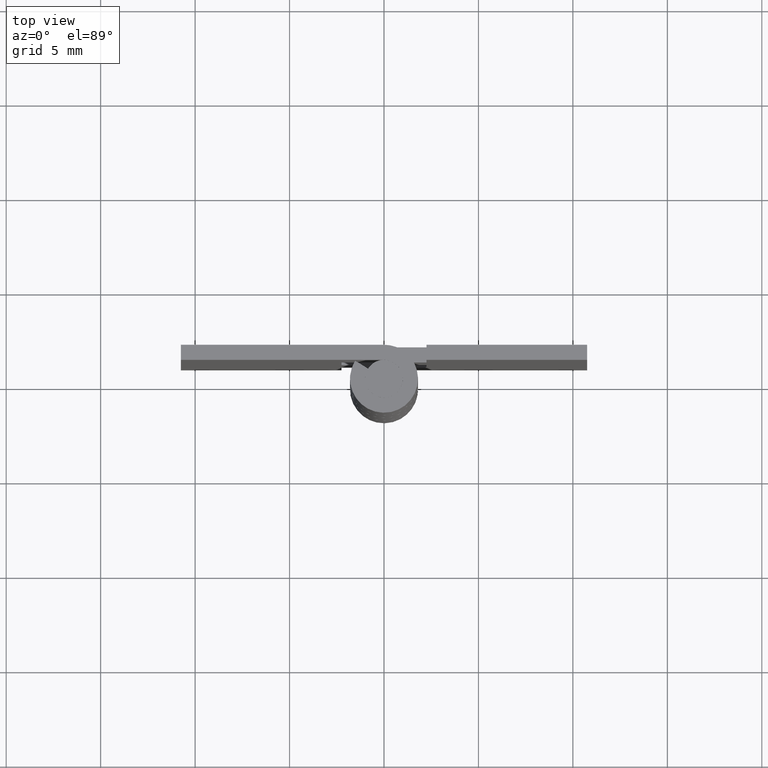
[diagram: clean part render]
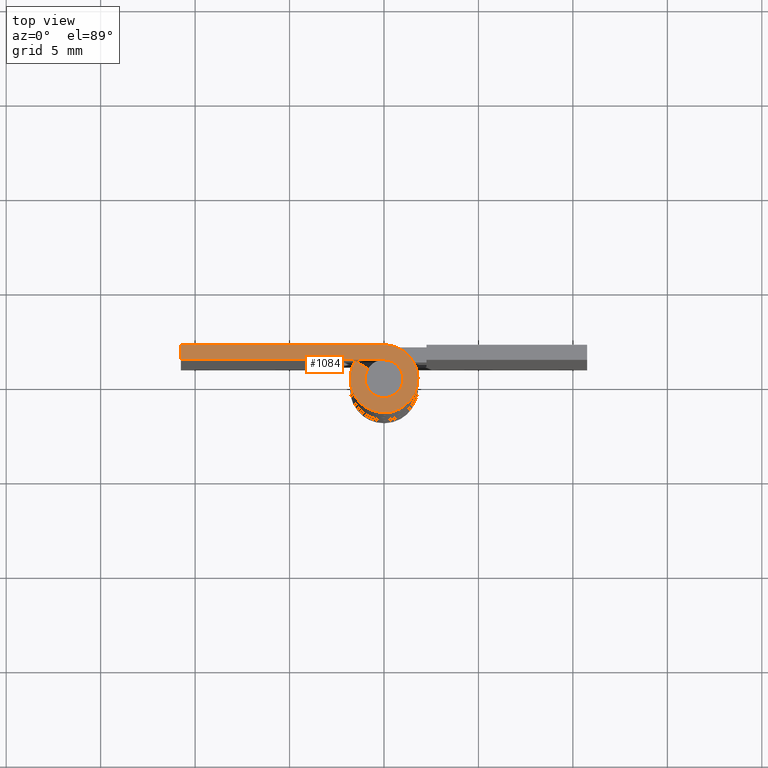
[diagram: same view with one face highlighted and labeled with its STEP entity id]
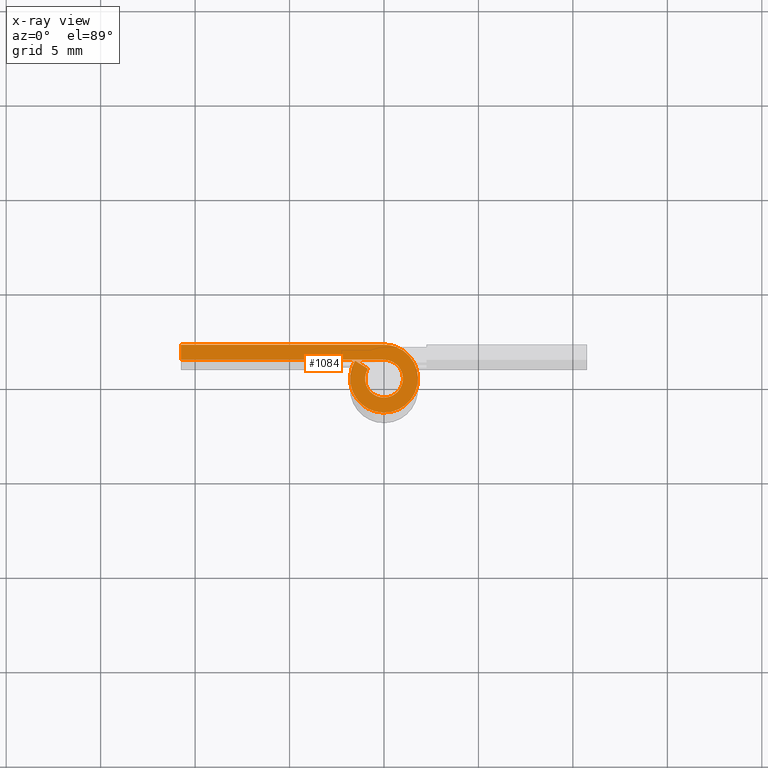
[diagram: x-ray of the same camera — body ghosted, the highlighted face saturated]
A machine part, top view. The second image highlights one B-rep face of the part: STEP entity #1084.
The next image is the same camera in x-ray: the body ghosted, the highlighted face saturated — about 0% of this face is hidden behind the body in this view.
In plain terms, the highlighted face is a freeform B-spline surface patch.
Its self-contained STEP definition (entity closure, byte-faithful):
#1007=CARTESIAN_POINT('',(-11.376868335568741,1.979806474346781,32.0));
#1008=CARTESIAN_POINT('',(2.426785787157178,1.979806474346781,32.0));
#1009=CARTESIAN_POINT('',(-11.376868335568741,-1.979468449301521,32.0));
#1010=CARTESIAN_POINT('',(2.426785787157178,-1.979468449301521,32.0));
#1011=B_SPLINE_SURFACE_WITH_KNOTS('',1,1,((#1007,#1009),(#1008,#1010)),.UNSPECIFIED.,.F.,.F.,.U.,(2,2),(2,2),(0.0,13.803654122725920),(0.0,3.959274923648302),.UNSPECIFIED.);
#1012=CARTESIAN_POINT('',(1.102148E-016,1.800003000000000,32.0));
#1013=VERTEX_POINT('',#1012);
#1014=CARTESIAN_POINT('',(-10.750000000000000,1.800003000000000,32.0));
#1015=VERTEX_POINT('',#1014);
#1016=CARTESIAN_POINT('',(1.102148E-016,1.800003000000000,32.0));
#1017=CARTESIAN_POINT('',(-10.750000000000000,1.800003000000000,32.0));
#1018=QUASI_UNIFORM_CURVE('',1,(#1016,#1017),.UNSPECIFIED.,.F.,.U.);
#1019=EDGE_CURVE('',#1013,#1015,#1018,.T.);
#1020=ORIENTED_EDGE('',*,*,#1019,.T.);
#1021=CARTESIAN_POINT('',(-10.750000000000000,1.0,32.0));
#1022=VERTEX_POINT('',#1021);
#1023=CARTESIAN_POINT('',(-10.750000000000000,1.800003000000000,32.0));
#1024=CARTESIAN_POINT('',(-10.750000000000000,1.0,32.0));
#1025=QUASI_UNIFORM_CURVE('',1,(#1023,#1024),.UNSPECIFIED.,.F.,.U.);
#1026=EDGE_CURVE('',#1015,#1022,#1025,.T.);
#1027=ORIENTED_EDGE('',*,*,#1026,.T.);
#1028=CARTESIAN_POINT('',(-1.224606E-016,1.0,32.0));
#1029=VERTEX_POINT('',#1028);
#1030=CARTESIAN_POINT('',(-10.750000000000000,1.0,32.0));
#1031=CARTESIAN_POINT('',(-1.224606E-016,1.0,32.0));
#1032=QUASI_UNIFORM_CURVE('',1,(#1030,#1031),.UNSPECIFIED.,.F.,.U.);
#1033=EDGE_CURVE('',#1022,#1029,#1032,.T.);
#1034=ORIENTED_EDGE('',*,*,#1033,.T.);
#1035=CARTESIAN_POINT('',(-0.849382491745591,0.527777777777779,32.0));
#1036=VERTEX_POINT('',#1035);
#1037=CARTESIAN_POINT('',(-0.849382491745591,0.527777777777779,32.0));
#1038=CARTESIAN_POINT('',(-1.257765516524186,-0.129456016023776,32.000000000000007));
#1039=CARTESIAN_POINT('',(-0.724070426544637,-0.689726045182772,32.0));
#1040=CARTESIAN_POINT('',(-0.190375336565088,-1.249996074341768,32.000000000000007));
#1041=CARTESIAN_POINT('',(0.485912657903774,-0.874007373475127,32.0));
#1042=CARTESIAN_POINT('',(1.162200652372636,-0.498018672608487,32.000000000000007));
#1043=CARTESIAN_POINT('',(0.967989507555513,0.250990663695756,32.0));
#1044=CARTESIAN_POINT('',(0.773778362738389,1.0,32.000000000000007));
#1045=CARTESIAN_POINT('',(0.0,1.0,32.0));
#1053=(BOUNDED_CURVE()B_SPLINE_CURVE(2,(#1037,#1038,#1039,#1040,#1041,#1042,#1043,#1044,#1045),.UNSPECIFIED.,.F.,.U.)B_SPLINE_CURVE_WITH_KNOTS((3,2,2,2,3),(0.0,0.250000000000000,0.500000000000000,0.750000000000000,1.0),.UNSPECIFIED.)CURVE()GEOMETRIC_REPRESENTATION_ITEM()RATIONAL_B_SPLINE_CURVE((1.0,0.790882628363956,1.0,0.790882628363956,1.0,0.790882628363956,1.0,0.790882628363956,1.0))REPRESENTATION_ITEM(''));
#1054=EDGE_CURVE('',#1036,#1029,#1053,.T.);
#1055=ORIENTED_EDGE('',*,*,#1054,.F.);
#1056=CARTESIAN_POINT('',(-1.528888485142065,0.950000000000000,32.0));
#1057=VERTEX_POINT('',#1056);
#1058=CARTESIAN_POINT('',(-0.849382491745591,0.527777777777779,32.0));
#1059=CARTESIAN_POINT('',(-1.528888485142065,0.950000000000000,32.0));
#1060=QUASI_UNIFORM_CURVE('',1,(#1058,#1059),.UNSPECIFIED.,.F.,.U.);
#1061=EDGE_CURVE('',#1036,#1057,#1060,.T.);
#1062=ORIENTED_EDGE('',*,*,#1061,.T.);
#1063=CARTESIAN_POINT('',(-1.528888485142065,0.950000000000000,32.0));
#1064=CARTESIAN_POINT('',(-2.263977381650527,-0.233023902377307,31.999999999999996));
#1065=CARTESIAN_POINT('',(-1.303325127827986,-1.241511319257688,32.0));
#1066=CARTESIAN_POINT('',(-0.342672874005446,-2.249998736138069,31.999999999999996));
#1067=CARTESIAN_POINT('',(0.874645516038505,-1.573216685944016,32.0));
#1068=CARTESIAN_POINT('',(2.091963906082458,-0.896434635749962,31.999999999999996));
#1069=CARTESIAN_POINT('',(1.742382753552281,0.451784733041583,32.0));
#1070=CARTESIAN_POINT('',(1.392801601022104,1.800004101833125,31.999999999999996));
#1071=CARTESIAN_POINT('',(1.102148E-016,1.800003000000000,32.0));
#1079=(BOUNDED_CURVE()B_SPLINE_CURVE(2,(#1063,#1064,#1065,#1066,#1067,#1068,#1069,#1070,#1071),.UNSPECIFIED.,.F.,.U.)B_SPLINE_CURVE_WITH_KNOTS((3,2,2,2,3),(0.0,0.250000000000000,0.500000000000000,0.750000000000000,1.0),.UNSPECIFIED.)CURVE()GEOMETRIC_REPRESENTATION_ITEM()RATIONAL_B_SPLINE_CURVE((1.0,0.790882628363956,1.0,0.790882628363956,1.0,0.790882628363956,1.0,0.790882628363956,1.0))REPRESENTATION_ITEM(''));
#1080=EDGE_CURVE('',#1057,#1013,#1079,.T.);
#1081=ORIENTED_EDGE('',*,*,#1080,.T.);
#1082=EDGE_LOOP('',(#1020,#1027,#1034,#1055,#1062,#1081));
#1083=FACE_OUTER_BOUND('',#1082,.T.);
#1084=ADVANCED_FACE('',(#1083),#1011,.F.);